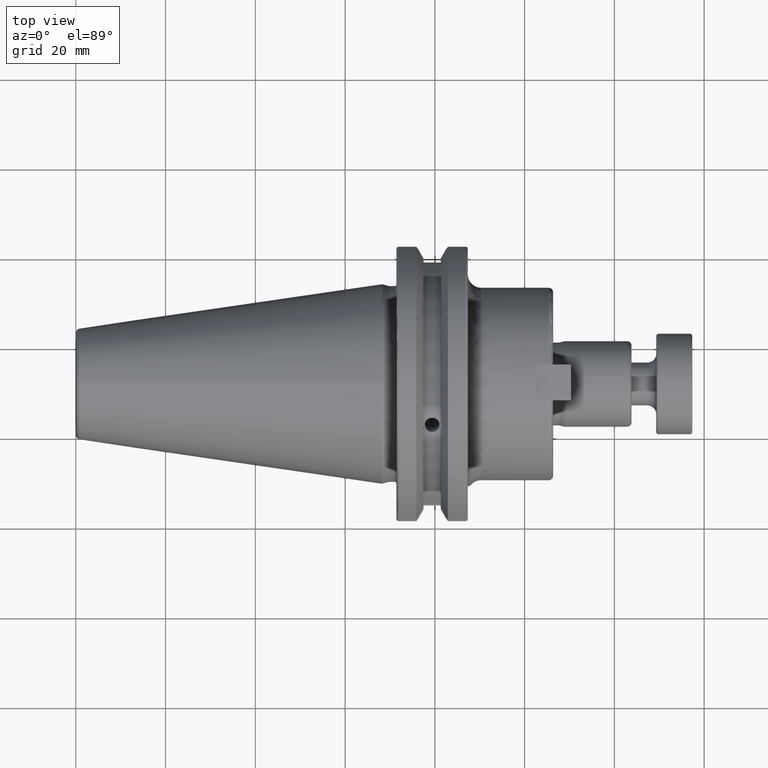
[diagram: clean part render]
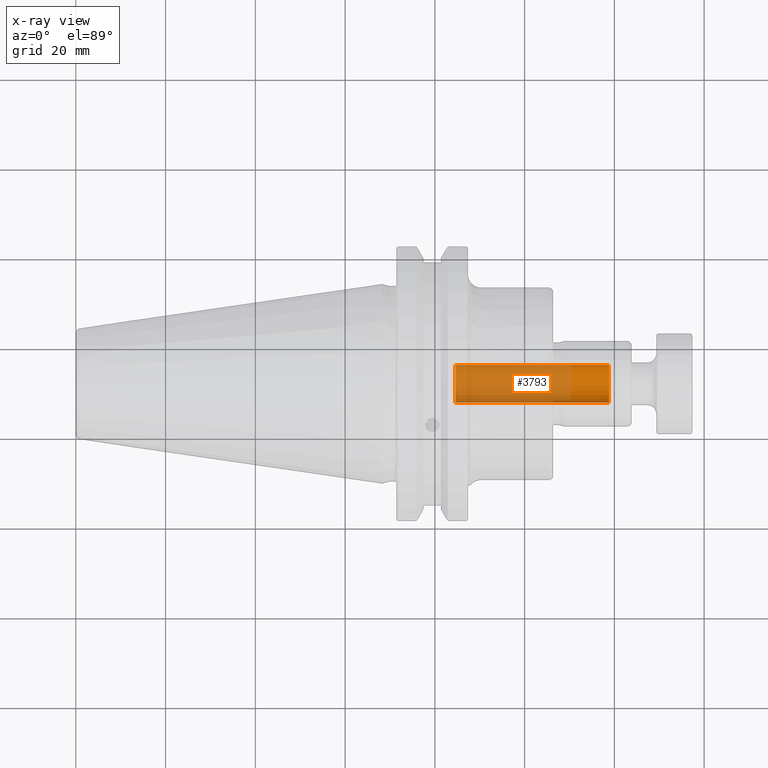
[diagram: x-ray — body ghosted, one internal face saturated and labeled with its STEP entity id]
A machine part, top view, then the same camera in x-ray: the body is ghosted and one INTERNAL B-rep face — a face not visible from any outside direction — is saturated and labeled: STEP entity #3793.
In plain terms, the highlighted cylindrical surface (edge-blend (fillet) strip) has radius 4.2164 mm, axis along (1, 0, 0).
Its self-contained STEP definition (entity closure, byte-faithful):
#996=CARTESIAN_POINT('',(1.989826771654E0,0.E0,0.E0));
#997=DIRECTION('',(1.E0,0.E0,0.E0));
#998=DIRECTION('',(0.E0,-1.E0,0.E0));
#999=AXIS2_PLACEMENT_3D('',#996,#997,#998);
#1014=DIRECTION('',(1.E0,0.E0,0.E0));
#1015=VECTOR('',#1014,1.347929557219E0);
#1016=CARTESIAN_POINT('',(6.418972144346E-1,-1.66E-1,0.E0));
#1017=LINE('',#1016,#1015);
#1018=DIRECTION('',(1.E0,0.E0,0.E0));
#1019=VECTOR('',#1018,1.347929557219E0);
#1020=CARTESIAN_POINT('',(6.418972144346E-1,1.66E-1,0.E0));
#1021=LINE('',#1020,#1019);
#1022=CARTESIAN_POINT('',(6.418972144346E-1,0.E0,0.E0));
#1023=DIRECTION('',(1.E0,0.E0,0.E0));
#1024=DIRECTION('',(0.E0,-1.E0,0.E0));
#1025=AXIS2_PLACEMENT_3D('',#1022,#1023,#1024);
#2534=CARTESIAN_POINT('',(1.989826771654E0,-1.66E-1,0.E0));
#2536=VERTEX_POINT('',#2534);
#2538=CARTESIAN_POINT('',(1.989826771654E0,1.66E-1,0.E0));
#2540=VERTEX_POINT('',#2538);
#2542=CARTESIAN_POINT('',(6.418972144346E-1,-1.66E-1,0.E0));
#2543=VERTEX_POINT('',#2542);
#2544=CARTESIAN_POINT('',(6.418972144346E-1,1.66E-1,0.E0));
#2545=VERTEX_POINT('',#2544);
#3781=CARTESIAN_POINT('',(-3.442634094488E0,0.E0,0.E0));
#3782=DIRECTION('',(1.E0,0.E0,0.E0));
#3783=DIRECTION('',(0.E0,-1.E0,0.E0));
#3784=AXIS2_PLACEMENT_3D('',#3781,#3782,#3783);
#3785=CYLINDRICAL_SURFACE('',#3784,1.66E-1);
#3786=ORIENTED_EDGE('',*,*,#3771,.F.);
#3788=ORIENTED_EDGE('',*,*,#3787,.T.);
#3789=ORIENTED_EDGE('',*,*,#3774,.T.);
#3790=ORIENTED_EDGE('',*,*,#3745,.F.);
#3791=EDGE_LOOP('',(#3786,#3788,#3789,#3790));
#3792=FACE_OUTER_BOUND('',#3791,.F.);
#3793=ADVANCED_FACE('',(#3792),#3785,.F.);
#1000=CIRCLE('',#999,1.66E-1);
#1026=CIRCLE('',#1025,1.66E-1);
#3745=EDGE_CURVE('',#2536,#2540,#1000,.T.);
#3771=EDGE_CURVE('',#2543,#2536,#1017,.T.);
#3774=EDGE_CURVE('',#2545,#2540,#1021,.T.);
#3787=EDGE_CURVE('',#2543,#2545,#1026,.T.);